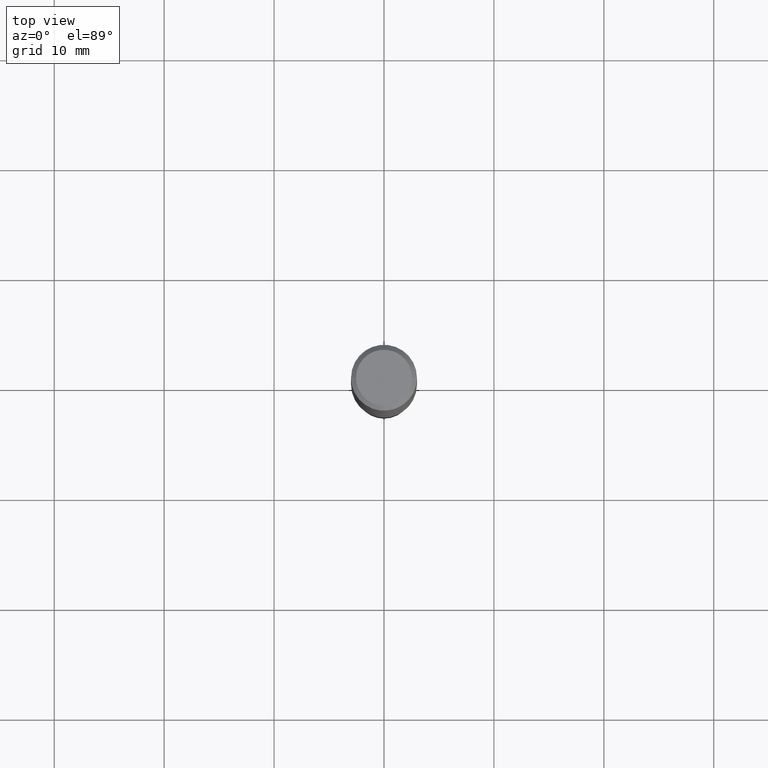
[diagram: clean part render]
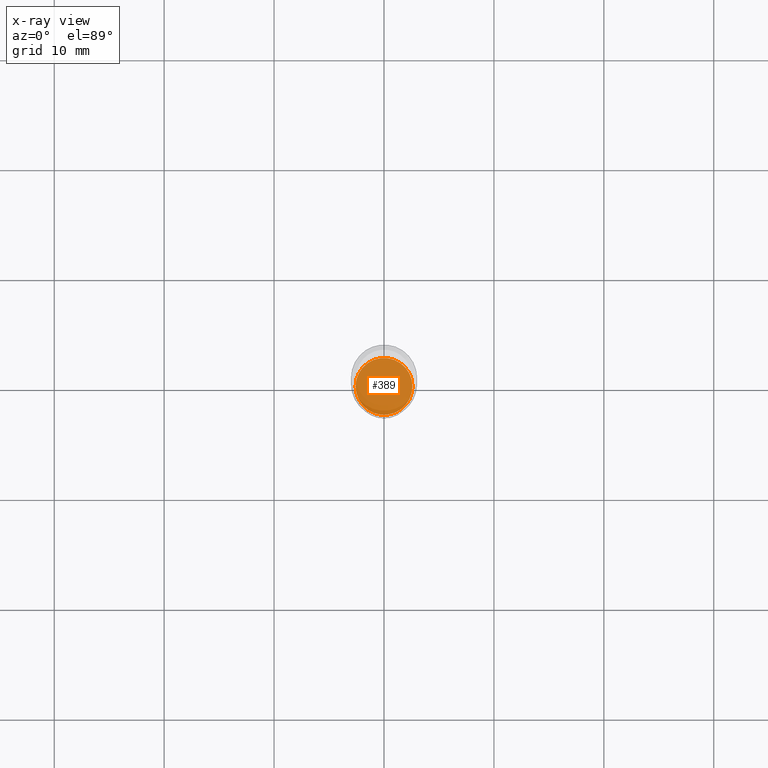
[diagram: x-ray — body ghosted, one internal face saturated and labeled with its STEP entity id]
A machine part, top view, then the same camera in x-ray: the body is ghosted and one INTERNAL B-rep face — a face not visible from any outside direction — is saturated and labeled: STEP entity #389.
In plain terms, the highlighted planar face has unit normal (-0, 0, 1).
Its self-contained STEP definition (entity closure, byte-faithful):
#47 = CARTESIAN_POINT ( 'NONE',  ( 0.1018499999999999961, -7.034287453367281792E-15, -1.810999999999999943 ) ) ;
#50 = AXIS2_PLACEMENT_3D ( 'NONE', #185, #265, #411 ) ;
#64 = EDGE_CURVE ( 'NONE', #253, #304, #67, .T. ) ;
#67 = CIRCLE ( 'NONE', #196, 0.1018499999999999961 ) ;
#99 = DIRECTION ( 'NONE',  ( 1.000000000000000000, -6.982962677686265922E-15, 0.000000000000000000 ) ) ;
#108 = CARTESIAN_POINT ( 'NONE',  ( 4.428744008001282238E-29, -6.323072704644935995E-15, -1.810999999999999943 ) ) ;
#126 = CARTESIAN_POINT ( 'NONE',  ( 4.428744008001282238E-29, -6.323072704644935995E-15, -1.810999999999999943 ) ) ;
#134 = AXIS2_PLACEMENT_3D ( 'NONE', #108, #371, #99 ) ;
#142 = ORIENTED_EDGE ( 'NONE', *, *, #205, .F. ) ;
#146 = EDGE_LOOP ( 'NONE', ( #142, #193 ) ) ;
#160 = CARTESIAN_POINT ( 'NONE',  ( -0.1018499999999999961, -5.596735701099162782E-15, -1.810999999999999943 ) ) ;
#185 = CARTESIAN_POINT ( 'NONE',  ( 4.428744008001282238E-29, -6.323072704644935995E-15, -1.810999999999999943 ) ) ;
#193 = ORIENTED_EDGE ( 'NONE', *, *, #64, .F. ) ;
#196 = AXIS2_PLACEMENT_3D ( 'NONE', #126, #283, #246 ) ;
#205 = EDGE_CURVE ( 'NONE', #304, #253, #480, .T. ) ;
#246 = DIRECTION ( 'NONE',  ( 1.000000000000000000, -6.982962677686265922E-15, 0.000000000000000000 ) ) ;
#253 = VERTEX_POINT ( 'NONE', #160 ) ;
#265 = DIRECTION ( 'NONE',  ( -2.438088387897960049E-29, 3.491481338843145188E-15, 1.000000000000000000 ) ) ;
#283 = DIRECTION ( 'NONE',  ( -2.445468806185136597E-29, 3.491481338843145583E-15, 1.000000000000000000 ) ) ;
#304 = VERTEX_POINT ( 'NONE', #47 ) ;
#341 = PLANE ( 'NONE',  #50 ) ;
#371 = DIRECTION ( 'NONE',  ( -2.445468806185136597E-29, 3.491481338843145583E-15, 1.000000000000000000 ) ) ;
#376 = FACE_OUTER_BOUND ( 'NONE', #146, .T. ) ;
#389 = ADVANCED_FACE ( 'NONE', ( #376 ), #341, .F. ) ;
#411 = DIRECTION ( 'NONE',  ( 1.000000000000000000, -6.982962677686265922E-15, 4.876176775795935793E-29 ) ) ;
#480 = CIRCLE ( 'NONE', #134, 0.1018499999999999961 ) ;